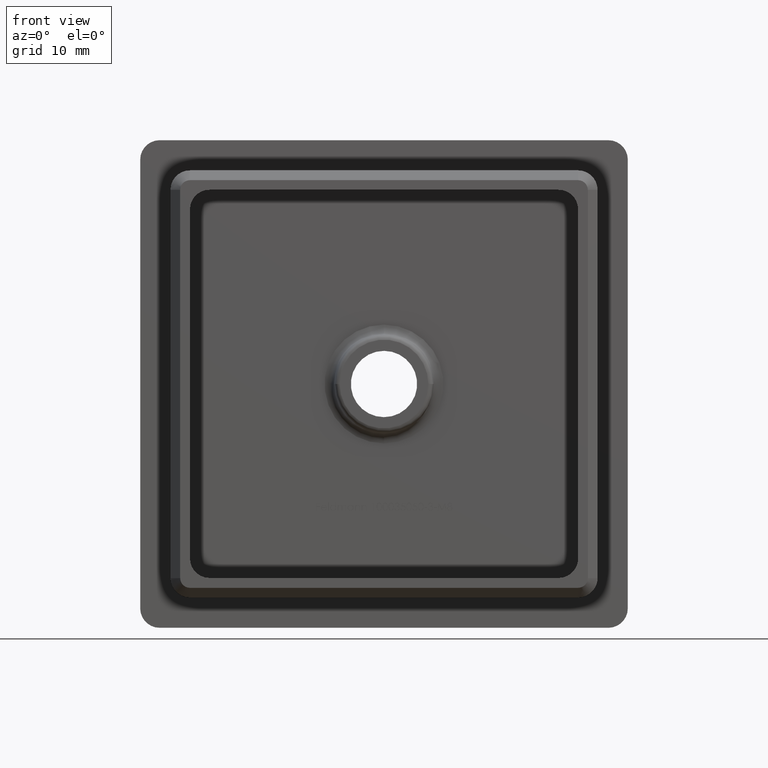
[diagram: clean part render]
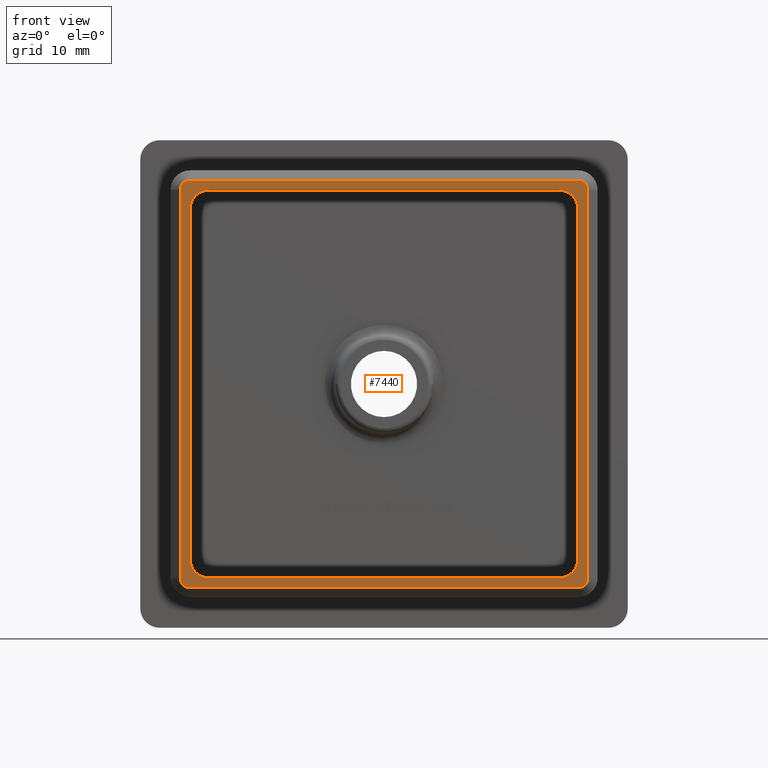
[diagram: same view with one face highlighted and labeled with its STEP entity id]
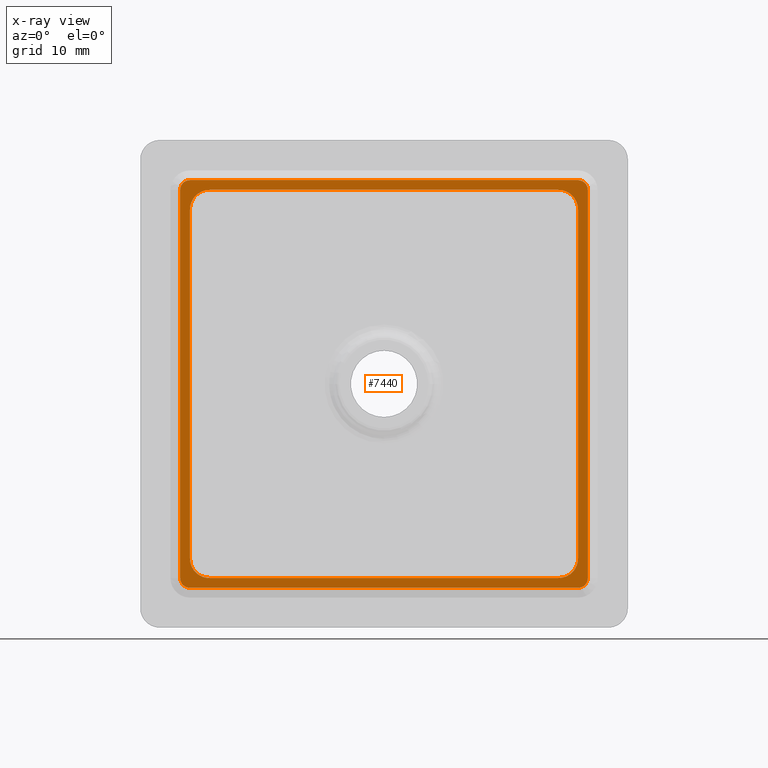
[diagram: x-ray of the same camera — body ghosted, the highlighted face saturated]
A machine part, front view. The second image highlights one B-rep face of the part: STEP entity #7440.
The next image is the same camera in x-ray: the body ghosted, the highlighted face saturated — about 0% of this face is hidden behind the body in this view.
In plain terms, the highlighted planar face has unit normal (0, -1, 0).
Its self-contained STEP definition (entity closure, byte-faithful):
#16 = DIRECTION ( 'NONE',  ( 0.0000000000000000000, -1.000000000000000000, 0.0000000000000000000 ) ) ;
#37 = VERTEX_POINT ( 'NONE', #10147 ) ;
#298 = CIRCLE ( 'NONE', #17507, 1.999999999999998200 ) ;
#323 = VECTOR ( 'NONE', #18128, 1000.000000000000000 ) ;
#330 = EDGE_CURVE ( 'NONE', #871, #7553, #15212, .T. ) ;
#414 = VECTOR ( 'NONE', #14394, 1000.000000000000000 ) ;
#437 = EDGE_CURVE ( 'NONE', #15353, #7529, #18947, .T. ) ;
#587 = LINE ( 'NONE', #4614, #15911 ) ;
#799 = LINE ( 'NONE', #6389, #323 ) ;
#822 = DIRECTION ( 'NONE',  ( -0.0000000000000000000, 1.000000000000000000, -0.0000000000000000000 ) ) ;
#871 = VERTEX_POINT ( 'NONE', #19052 ) ;
#947 = DIRECTION ( 'NONE',  ( 0.0000000000000000000, -1.000000000000000000, 0.0000000000000000000 ) ) ;
#1108 = VERTEX_POINT ( 'NONE', #10711 ) ;
#1267 = CARTESIAN_POINT ( 'NONE',  ( 19.89999999999998800, -20.00000000000000000, -20.89999999999998100 ) ) ;
#1306 = VERTEX_POINT ( 'NONE', #2860 ) ;
#1391 = VECTOR ( 'NONE', #6854, 1000.000000000000000 ) ;
#1417 = CARTESIAN_POINT ( 'NONE',  ( 19.89999999999999100, -20.00000000000000000, 19.89999999999999100 ) ) ;
#1517 = DIRECTION ( 'NONE',  ( 0.0000000000000000000, 0.0000000000000000000, -1.000000000000000000 ) ) ;
#1705 = ORIENTED_EDGE ( 'NONE', *, *, #2315, .T. ) ;
#1727 = EDGE_CURVE ( 'NONE', #871, #14375, #799, .T. ) ;
#1768 = DIRECTION ( 'NONE',  ( -1.000000000000000000, 0.0000000000000000000, 0.0000000000000000000 ) ) ;
#2013 = AXIS2_PLACEMENT_3D ( 'NONE', #9915, #947, #18742 ) ;
#2237 = FACE_OUTER_BOUND ( 'NONE', #8947, .T. ) ;
#2315 = EDGE_CURVE ( 'NONE', #37, #6870, #298, .T. ) ;
#2585 = PLANE ( 'NONE',  #2013 ) ;
#2755 = LINE ( 'NONE', #4104, #414 ) ;
#2774 = VERTEX_POINT ( 'NONE', #17720 ) ;
#2820 = ORIENTED_EDGE ( 'NONE', *, *, #437, .T. ) ;
#2860 = CARTESIAN_POINT ( 'NONE',  ( 19.89999999999998800, -20.00000000000000000, 20.89999999999998100 ) ) ;
#2939 = CARTESIAN_POINT ( 'NONE',  ( -19.89999999999999100, -20.00000000000000000, -17.89999999999998100 ) ) ;
#3097 = CARTESIAN_POINT ( 'NONE',  ( -19.89999999999998800, -20.00000000000000000, -20.89999999999998100 ) ) ;
#3116 = DIRECTION ( 'NONE',  ( 0.0000000000000000000, 0.0000000000000000000, -1.000000000000000000 ) ) ;
#3261 = EDGE_LOOP ( 'NONE', ( #9761, #4314, #7997, #19102, #10294, #6932, #14230, #1705 ) ) ;
#3477 = EDGE_CURVE ( 'NONE', #2774, #6306, #10520, .T. ) ;
#3499 = DIRECTION ( 'NONE',  ( 0.0000000000000000000, 0.0000000000000000000, -1.000000000000000000 ) ) ;
#3557 = ORIENTED_EDGE ( 'NONE', *, *, #17125, .T. ) ;
#3588 = EDGE_CURVE ( 'NONE', #2774, #14375, #18669, .T. ) ;
#3860 = DIRECTION ( 'NONE',  ( 0.0000000000000000000, 0.0000000000000000000, -1.000000000000000000 ) ) ;
#4104 = CARTESIAN_POINT ( 'NONE',  ( 19.89999999999998800, -20.00000000000000000, -20.89999999999998100 ) ) ;
#4314 = ORIENTED_EDGE ( 'NONE', *, *, #13184, .T. ) ;
#4396 = DIRECTION ( 'NONE',  ( -0.0000000000000000000, 1.000000000000000000, -0.0000000000000000000 ) ) ;
#4579 = CARTESIAN_POINT ( 'NONE',  ( -17.89999999999999100, -20.00000000000000000, -17.89999999999998100 ) ) ;
#4604 = CARTESIAN_POINT ( 'NONE',  ( 20.89999999999998100, -20.00000000000000000, 19.89999999999998800 ) ) ;
#4614 = CARTESIAN_POINT ( 'NONE',  ( -19.89999999999998800, -20.00000000000000000, 20.89999999999998100 ) ) ;
#4686 = CARTESIAN_POINT ( 'NONE',  ( -19.89999999999999100, -20.00000000000000000, -19.89999999999998800 ) ) ;
#4783 = AXIS2_PLACEMENT_3D ( 'NONE', #16686, #7954, #12271 ) ;
#4810 = EDGE_CURVE ( 'NONE', #37, #7553, #11647, .T. ) ;
#4890 = DIRECTION ( 'NONE',  ( 1.000000000000000000, 0.0000000000000000000, -8.717203396868382700E-017 ) ) ;
#4981 = CARTESIAN_POINT ( 'NONE',  ( 17.89999999999999500, -20.00000000000000000, -17.89999999999998800 ) ) ;
#5310 = DIRECTION ( 'NONE',  ( 0.0000000000000000000, 0.0000000000000000000, -1.000000000000000000 ) ) ;
#5644 = VECTOR ( 'NONE', #5975, 1000.000000000000000 ) ;
#5802 = CARTESIAN_POINT ( 'NONE',  ( -19.89999999999999100, -20.00000000000000000, 19.89999999999999100 ) ) ;
#5975 = DIRECTION ( 'NONE',  ( 0.0000000000000000000, -0.0000000000000000000, -1.000000000000000000 ) ) ;
#6276 = ORIENTED_EDGE ( 'NONE', *, *, #8937, .T. ) ;
#6306 = VERTEX_POINT ( 'NONE', #2939 ) ;
#6389 = CARTESIAN_POINT ( 'NONE',  ( -19.89999999999999100, -20.00000000000000000, 19.89999999999999100 ) ) ;
#6565 = AXIS2_PLACEMENT_3D ( 'NONE', #14735, #16, #1517 ) ;
#6574 = DIRECTION ( 'NONE',  ( 0.0000000000000000000, 0.0000000000000000000, 1.000000000000000000 ) ) ;
#6606 = CARTESIAN_POINT ( 'NONE',  ( -17.89999999999999100, -20.00000000000000000, -19.89999999999998800 ) ) ;
#6717 = CIRCLE ( 'NONE', #15613, 0.9999999999999940000 ) ;
#6854 = DIRECTION ( 'NONE',  ( 0.0000000000000000000, 0.0000000000000000000, -1.000000000000000000 ) ) ;
#6870 = VERTEX_POINT ( 'NONE', #11888 ) ;
#6932 = ORIENTED_EDGE ( 'NONE', *, *, #330, .T. ) ;
#7037 = EDGE_CURVE ( 'NONE', #19091, #8012, #13821, .T. ) ;
#7106 = CARTESIAN_POINT ( 'NONE',  ( -17.89999999999999100, -20.00000000000000000, 19.89999999999999100 ) ) ;
#7190 = ORIENTED_EDGE ( 'NONE', *, *, #18773, .T. ) ;
#7206 = ORIENTED_EDGE ( 'NONE', *, *, #7037, .T. ) ;
#7440 = ADVANCED_FACE ( 'NONE', ( #2237, #17329 ), #2585, .T. ) ;
#7451 = DIRECTION ( 'NONE',  ( -0.0000000000000000000, 1.000000000000000000, -0.0000000000000000000 ) ) ;
#7465 = CIRCLE ( 'NONE', #19210, 1.999999999999998200 ) ;
#7529 = VERTEX_POINT ( 'NONE', #18809 ) ;
#7553 = VERTEX_POINT ( 'NONE', #15732 ) ;
#7852 = CIRCLE ( 'NONE', #6565, 0.9999999999999940000 ) ;
#7954 = DIRECTION ( 'NONE',  ( 0.0000000000000000000, -1.000000000000000000, 0.0000000000000000000 ) ) ;
#7997 = ORIENTED_EDGE ( 'NONE', *, *, #3477, .F. ) ;
#8012 = VERTEX_POINT ( 'NONE', #4604 ) ;
#8421 = AXIS2_PLACEMENT_3D ( 'NONE', #13503, #16252, #3116 ) ;
#8619 = VECTOR ( 'NONE', #4890, 1000.000000000000000 ) ;
#8937 = EDGE_CURVE ( 'NONE', #1306, #15353, #587, .T. ) ;
#8947 = EDGE_LOOP ( 'NONE', ( #12443, #7206, #7190, #6276, #2820, #10835, #10471, #3557 ) ) ;
#9313 = CARTESIAN_POINT ( 'NONE',  ( -19.89999999999998800, -20.00000000000000000, 20.89999999999998100 ) ) ;
#9761 = ORIENTED_EDGE ( 'NONE', *, *, #15446, .F. ) ;
#9806 = VECTOR ( 'NONE', #11798, 1000.000000000000000 ) ;
#9915 = CARTESIAN_POINT ( 'NONE',  ( 0.0000000000000000000, -20.00000000000000000, 0.0000000000000000000 ) ) ;
#10147 = CARTESIAN_POINT ( 'NONE',  ( 19.89999999999998800, -20.00000000000000000, -17.89999999999998800 ) ) ;
#10294 = ORIENTED_EDGE ( 'NONE', *, *, #1727, .F. ) ;
#10471 = ORIENTED_EDGE ( 'NONE', *, *, #16014, .T. ) ;
#10520 = LINE ( 'NONE', #5802, #5644 ) ;
#10603 = DIRECTION ( 'NONE',  ( 0.0000000000000000000, 0.0000000000000000000, -1.000000000000000000 ) ) ;
#10711 = CARTESIAN_POINT ( 'NONE',  ( -20.89999999999998100, -20.00000000000000000, -19.89999999999998800 ) ) ;
#10835 = ORIENTED_EDGE ( 'NONE', *, *, #14101, .T. ) ;
#11371 = DIRECTION ( 'NONE',  ( -0.0000000000000000000, 1.000000000000000000, -0.0000000000000000000 ) ) ;
#11647 = LINE ( 'NONE', #1417, #9806 ) ;
#11725 = DIRECTION ( 'NONE',  ( 0.0000000000000000000, 0.0000000000000000000, -1.000000000000000000 ) ) ;
#11798 = DIRECTION ( 'NONE',  ( 8.717203396868381500E-017, -0.0000000000000000000, 1.000000000000000000 ) ) ;
#11888 = CARTESIAN_POINT ( 'NONE',  ( 17.89999999999999500, -20.00000000000000000, -19.89999999999999100 ) ) ;
#12271 = DIRECTION ( 'NONE',  ( 0.0000000000000000000, 0.0000000000000000000, -1.000000000000000000 ) ) ;
#12443 = ORIENTED_EDGE ( 'NONE', *, *, #15458, .T. ) ;
#13010 = CARTESIAN_POINT ( 'NONE',  ( 17.89999999999999100, -20.00000000000000000, 17.89999999999999100 ) ) ;
#13147 = AXIS2_PLACEMENT_3D ( 'NONE', #18791, #11371, #3860 ) ;
#13184 = EDGE_CURVE ( 'NONE', #14965, #6306, #7465, .T. ) ;
#13189 = CIRCLE ( 'NONE', #4783, 0.9999999999999940000 ) ;
#13424 = DIRECTION ( 'NONE',  ( 0.0000000000000000000, -1.000000000000000000, 0.0000000000000000000 ) ) ;
#13503 = CARTESIAN_POINT ( 'NONE',  ( -19.89999999999998800, -20.00000000000000000, 19.89999999999998800 ) ) ;
#13656 = LINE ( 'NONE', #4686, #8619 ) ;
#13821 = LINE ( 'NONE', #15579, #14301 ) ;
#14101 = EDGE_CURVE ( 'NONE', #7529, #1108, #17194, .T. ) ;
#14230 = ORIENTED_EDGE ( 'NONE', *, *, #4810, .F. ) ;
#14301 = VECTOR ( 'NONE', #6574, 1000.000000000000000 ) ;
#14375 = VERTEX_POINT ( 'NONE', #7106 ) ;
#14394 = DIRECTION ( 'NONE',  ( 1.000000000000000000, 0.0000000000000000000, 0.0000000000000000000 ) ) ;
#14720 = AXIS2_PLACEMENT_3D ( 'NONE', #13010, #4396, #5310 ) ;
#14735 = CARTESIAN_POINT ( 'NONE',  ( 19.89999999999998800, -20.00000000000000000, 19.89999999999998800 ) ) ;
#14965 = VERTEX_POINT ( 'NONE', #6606 ) ;
#15129 = VERTEX_POINT ( 'NONE', #1267 ) ;
#15212 = CIRCLE ( 'NONE', #14720, 2.000000000000001800 ) ;
#15353 = VERTEX_POINT ( 'NONE', #9313 ) ;
#15446 = EDGE_CURVE ( 'NONE', #14965, #6870, #13656, .T. ) ;
#15458 = EDGE_CURVE ( 'NONE', #15129, #19091, #13189, .T. ) ;
#15579 = CARTESIAN_POINT ( 'NONE',  ( 20.89999999999998100, -20.00000000000000000, 19.89999999999998800 ) ) ;
#15613 = AXIS2_PLACEMENT_3D ( 'NONE', #16360, #13424, #10603 ) ;
#15732 = CARTESIAN_POINT ( 'NONE',  ( 19.89999999999999100, -20.00000000000000000, 17.89999999999999100 ) ) ;
#15911 = VECTOR ( 'NONE', #1768, 1000.000000000000000 ) ;
#16013 = VERTEX_POINT ( 'NONE', #3097 ) ;
#16014 = EDGE_CURVE ( 'NONE', #1108, #16013, #6717, .T. ) ;
#16252 = DIRECTION ( 'NONE',  ( 0.0000000000000000000, -1.000000000000000000, 0.0000000000000000000 ) ) ;
#16360 = CARTESIAN_POINT ( 'NONE',  ( -19.89999999999998800, -20.00000000000000000, -19.89999999999998800 ) ) ;
#16686 = CARTESIAN_POINT ( 'NONE',  ( 19.89999999999998800, -20.00000000000000000, -19.89999999999998800 ) ) ;
#17125 = EDGE_CURVE ( 'NONE', #16013, #15129, #2755, .T. ) ;
#17194 = LINE ( 'NONE', #18407, #1391 ) ;
#17329 = FACE_BOUND ( 'NONE', #3261, .T. ) ;
#17412 = CARTESIAN_POINT ( 'NONE',  ( 20.89999999999998100, -20.00000000000000000, -19.89999999999998800 ) ) ;
#17507 = AXIS2_PLACEMENT_3D ( 'NONE', #4981, #822, #3499 ) ;
#17720 = CARTESIAN_POINT ( 'NONE',  ( -19.89999999999999100, -20.00000000000000000, 17.89999999999999100 ) ) ;
#18128 = DIRECTION ( 'NONE',  ( -1.000000000000000000, -0.0000000000000000000, -0.0000000000000000000 ) ) ;
#18407 = CARTESIAN_POINT ( 'NONE',  ( -20.89999999999998100, -20.00000000000000000, -19.89999999999998800 ) ) ;
#18669 = CIRCLE ( 'NONE', #13147, 2.000000000000001800 ) ;
#18742 = DIRECTION ( 'NONE',  ( 0.0000000000000000000, -0.0000000000000000000, -1.000000000000000000 ) ) ;
#18773 = EDGE_CURVE ( 'NONE', #8012, #1306, #7852, .T. ) ;
#18791 = CARTESIAN_POINT ( 'NONE',  ( -17.89999999999999100, -20.00000000000000000, 17.89999999999999100 ) ) ;
#18809 = CARTESIAN_POINT ( 'NONE',  ( -20.89999999999998100, -20.00000000000000000, 19.89999999999998800 ) ) ;
#18947 = CIRCLE ( 'NONE', #8421, 0.9999999999999940000 ) ;
#19052 = CARTESIAN_POINT ( 'NONE',  ( 17.89999999999999500, -20.00000000000000000, 19.89999999999999100 ) ) ;
#19091 = VERTEX_POINT ( 'NONE', #17412 ) ;
#19102 = ORIENTED_EDGE ( 'NONE', *, *, #3588, .T. ) ;
#19210 = AXIS2_PLACEMENT_3D ( 'NONE', #4579, #7451, #11725 ) ;